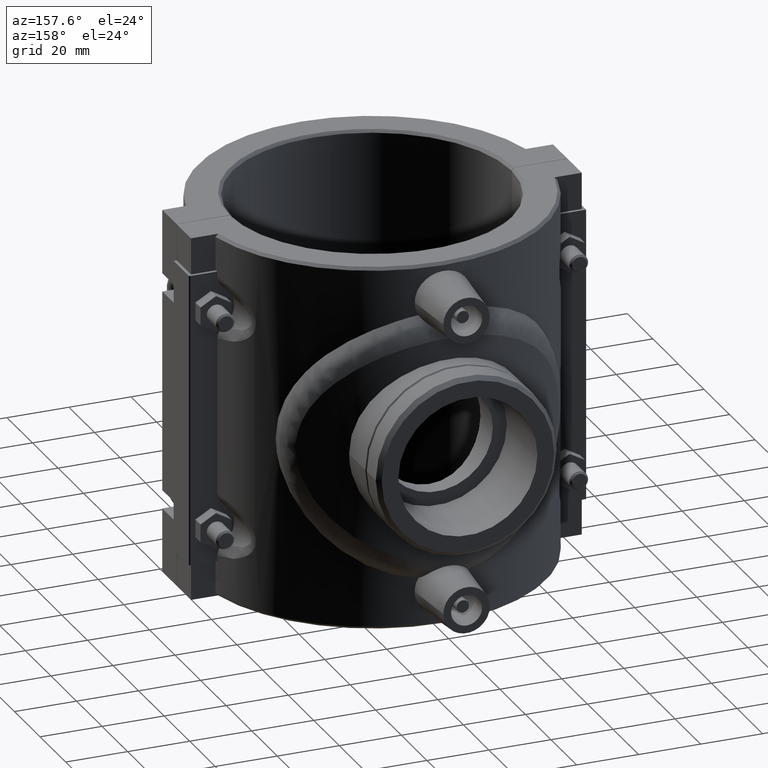
[diagram: clean part render]
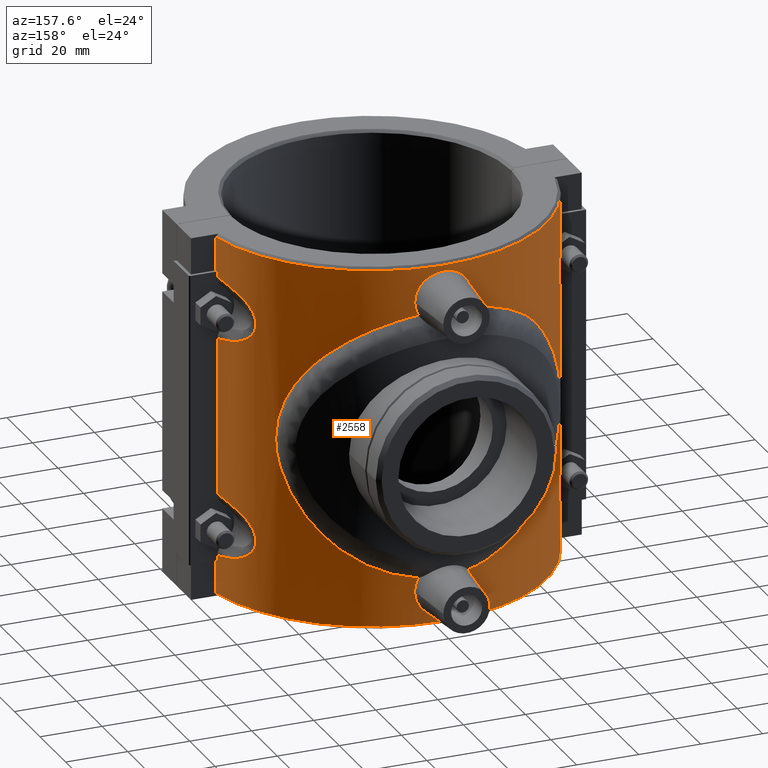
[diagram: same view with one face highlighted and labeled with its STEP entity id]
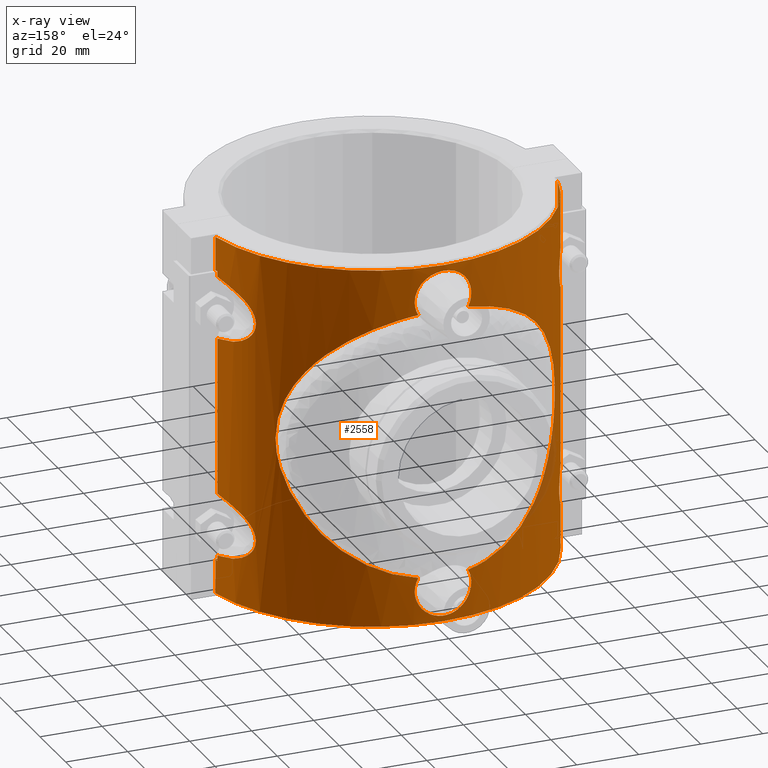
[diagram: x-ray of the same camera — body ghosted, the highlighted face saturated]
A machine part, auxiliary view. The second image highlights one B-rep face of the part: STEP entity #2558.
The next image is the same camera in x-ray: the body ghosted, the highlighted face saturated — about 1% of this face is hidden behind the body in this view.
In plain terms, the highlighted cylindrical surface (partial cylindrical patch) has radius 56.25 mm, axis along (0, 0, 1).
Its self-contained STEP definition (entity closure, byte-faithful):
#73=CYLINDRICAL_SURFACE('',#2736,56.25);
#118=FACE_BOUND('',#433,.T.);
#156=B_SPLINE_CURVE_WITH_KNOTS('',3,(#3756,#3757,#3758,#3759,#3760,#3761,
#3762,#3763,#3764,#3765,#3766,#3767,#3768,#3769),.UNSPECIFIED.,.F.,.F.,
(4,1,1,1,1,1,1,1,1,1,1,4),(-4.4432836975167,-3.87456979215665,-3.30585588679661,
-3.02149893411658,-2.73714198143656,-2.35799937786319,-2.16842807607651,
-1.97885677428983,-1.78928547250314,-1.59971417071646,-1.03100026535641,
-0.462286359996365),.UNSPECIFIED.);
#158=B_SPLINE_CURVE_WITH_KNOTS('',3,(#3875,#3876,#3877,#3878,#3879,#3880,
#3881,#3882,#3883,#3884,#3885,#3886,#3887,#3888),.UNSPECIFIED.,.F.,.F.,
(4,1,1,1,1,1,1,1,1,1,1,4),(-4.4432836995391,-3.87456979369676,-3.30585588785442,
-3.02149893493326,-2.73714198201209,-2.54757068006464,-2.16842807616975,
-1.97885677422231,-1.78928547227486,-1.59971417032741,-1.03100026448508,
-0.462286358642742),.UNSPECIFIED.);
#164=B_SPLINE_CURVE_WITH_KNOTS('',3,(#4121,#4122,#4123,#4124,#4125,#4126,
#4127,#4128,#4129,#4130,#4131,#4132,#4133,#4134),.UNSPECIFIED.,.F.,.F.,
(4,1,1,1,1,1,1,1,1,1,1,4),(-4.44301013192004,-3.87429622653955,-3.30558232115907,
-3.02122536846883,-2.73686841577859,-2.3577258121916,-2.16815451039811,
-1.97858320860462,-1.78901190681112,-1.59944060501763,-1.03072669963715,
-0.462012794256667),.UNSPECIFIED.);
#166=B_SPLINE_CURVE_WITH_KNOTS('',3,(#4211,#4212,#4213,#4214,#4215,#4216,
#4217,#4218,#4219,#4220,#4221,#4222,#4223,#4224,#4225,#4226,#4227,#4228,
#4229,#4230,#4231,#4232,#4233),.UNSPECIFIED.,.F.,.F.,(4,2,2,2,2,2,2,2,3,
2,4),(2.74313259182671,3.08631392385431,3.4294952558819,3.77209707181099,
4.11469888774007,4.45730070366916,4.79990251959824,5.14308385162584,5.48626518365343,
5.82944651568102,5.91699231995167),.UNSPECIFIED.);
#167=B_SPLINE_CURVE_WITH_KNOTS('',3,(#4234,#4235,#4236,#4237,#4238,#4239),
 .UNSPECIFIED.,.F.,.F.,(4,2,4),(2.31240545552862,2.39995125979912,2.74313259182671),
 .UNSPECIFIED.);
#168=B_SPLINE_CURVE_WITH_KNOTS('',3,(#4412,#4413,#4414,#4415,#4416,#4417,
#4418,#4419),.UNSPECIFIED.,.F.,.F.,(4,2,2,4),(0.,1.66212315507135,3.23329201684918,
3.84297080461332),.UNSPECIFIED.);
#170=B_SPLINE_CURVE_WITH_KNOTS('',3,(#4441,#4442,#4443,#4444,#4445,#4446,
#4447,#4448,#4449,#4450),.UNSPECIFIED.,.F.,.F.,(4,2,2,2,4),(5.36290793609133,
5.46058713858226,6.52389862414482,7.74509950607709,9.15954618815557),
 .UNSPECIFIED.);
#172=B_SPLINE_CURVE_WITH_KNOTS('',3,(#4485,#4486,#4487,#4488,#4489,#4490,
#4491,#4492),.UNSPECIFIED.,.F.,.F.,(4,2,2,4),(0.,1.66213023443418,3.23321670017497,
3.84296999681178),.UNSPECIFIED.);
#176=B_SPLINE_CURVE_WITH_KNOTS('',3,(#4540,#4541,#4542,#4543,#4544,#4545,
#4546,#4547,#4548,#4549),.UNSPECIFIED.,.F.,.F.,(4,2,2,2,4),(5.3629090338726,
5.46057653561845,6.52397221121869,7.74515040327368,9.15954774249414),
 .UNSPECIFIED.);
#177=B_SPLINE_CURVE_WITH_KNOTS('',3,(#4567,#4568,#4569,#4570,#4571,#4572),
 .UNSPECIFIED.,.F.,.F.,(4,2,4),(0.,0.343181332027593,0.43072713629824),
 .UNSPECIFIED.);
#178=B_SPLINE_CURVE_WITH_KNOTS('',3,(#4573,#4574,#4575,#4576,#4577,#4578,
#4579,#4580,#4581,#4582,#4583,#4584,#4585,#4586,#4587,#4588,#4589,#4590,
#4591,#4592,#4593,#4594),.UNSPECIFIED.,.F.,.F.,(4,2,2,2,2,2,2,2,2,2,4),
(2.31240545552862,2.39995125979912,2.74313259182671,3.08631392385431,3.4294952558819,
3.77209707181099,4.11469888774007,4.45730070366916,4.79990251959824,5.14308385162584,
5.48626518365343),.UNSPECIFIED.);
#179=B_SPLINE_CURVE_WITH_KNOTS('',3,(#4597,#4598,#4599,#4600,#4601,#4602,
#4603,#4604,#4605,#4606,#4607,#4608,#4609,#4610),.UNSPECIFIED.,.F.,.F.,
(4,1,1,1,1,1,1,1,1,1,1,4),(-4.44328367939686,-3.87456977306521,-3.30585586673356,
-3.02149891356773,-2.73714196040191,-2.35799935618081,-2.16842805407026,
-1.9788567519597,-1.78928544984915,-1.5997141477386,-1.03100024140695,-0.462286335075303),
 .UNSPECIFIED.);
#180=B_SPLINE_CURVE_WITH_KNOTS('',3,(#4616,#4617,#4618,#4619,#4620,#4621,
#4622,#4623,#4624,#4625,#4626,#4627,#4628,#4629),.UNSPECIFIED.,.F.,.F.,
(4,2,2,2,2,2,4),(12.0090314241229,12.6900104453561,13.6128407018104,14.5356709582647,
15.458501214719,16.3813314711733,17.0623104924065),.UNSPECIFIED.);
#181=B_SPLINE_CURVE_WITH_KNOTS('',3,(#4631,#4632,#4633,#4634,#4635,#4636,
#4637,#4638),.UNSPECIFIED.,.F.,.F.,(4,2,2,4),(26.5447023823875,27.2256814036207,
28.148511660075,29.0713419165293),.UNSPECIFIED.);
#182=B_SPLINE_CURVE_WITH_KNOTS('',3,(#4639,#4640,#4641,#4642,#4643,#4644,
#4645,#4646),.UNSPECIFIED.,.F.,.F.,(4,2,2,4),(0.,0.922830256454303,1.84566051290861,
2.52663953414158),.UNSPECIFIED.);
#259=FACE_OUTER_BOUND('',#432,.T.);
#432=EDGE_LOOP('',(#1899,#1900,#1901,#1902,#1903,#1904,#1905,#1906,#1907,
#1908,#1909,#1910,#1911,#1912,#1913,#1914,#1915,#1916,#1917,#1918));
#433=EDGE_LOOP('',(#1919,#1920,#1921,#1922,#1923,#1924,#1925,#1926,#1927,
#1928,#1929));
#589=LINE('',#3600,#788);
#591=LINE('',#3603,#790);
#592=LINE('',#3625,#791);
#613=LINE('',#3789,#812);
#631=LINE('',#3930,#830);
#632=LINE('',#3952,#831);
#633=LINE('',#3974,#832);
#659=LINE('',#4030,#858);
#675=LINE('',#4612,#874);
#676=LINE('',#4615,#875);
#788=VECTOR('',#2928,1.70778280095335);
#790=VECTOR('',#2930,1.70778280095326);
#791=VECTOR('',#2933,50.6155656019066);
#812=VECTOR('',#2966,10.9);
#830=VECTOR('',#3006,1.70778280095321);
#831=VECTOR('',#3009,50.6155656019099);
#832=VECTOR('',#3012,1.70778280095672);
#858=VECTOR('',#3052,10.9);
#874=VECTOR('',#3132,10.9);
#875=VECTOR('',#3135,10.9);
#977=CIRCLE('',#2675,56.25);
#978=CIRCLE('',#2677,56.25);
#985=CIRCLE('',#2700,56.25);
#986=CIRCLE('',#2703,56.25);
#998=CIRCLE('',#2737,56.25);
#999=CIRCLE('',#2738,56.25);
#1067=VERTEX_POINT('',#3573);
#1068=VERTEX_POINT('',#3574);
#1073=VERTEX_POINT('',#3586);
#1074=VERTEX_POINT('',#3587);
#1079=VERTEX_POINT('',#3599);
#1080=VERTEX_POINT('',#3602);
#1083=VERTEX_POINT('',#3615);
#1084=VERTEX_POINT('',#3624);
#1104=VERTEX_POINT('',#3785);
#1117=VERTEX_POINT('',#3927);
#1118=VERTEX_POINT('',#3929);
#1121=VERTEX_POINT('',#3942);
#1122=VERTEX_POINT('',#3951);
#1125=VERTEX_POINT('',#3964);
#1126=VERTEX_POINT('',#3973);
#1142=VERTEX_POINT('',#4007);
#1144=VERTEX_POINT('',#4015);
#1149=VERTEX_POINT('',#4029);
#1163=VERTEX_POINT('',#4176);
#1164=VERTEX_POINT('',#4177);
#1165=VERTEX_POINT('',#4210);
#1167=VERTEX_POINT('',#4411);
#1168=VERTEX_POINT('',#4420);
#1169=VERTEX_POINT('',#4440);
#1170=VERTEX_POINT('',#4451);
#1171=VERTEX_POINT('',#4484);
#1174=VERTEX_POINT('',#4533);
#1180=VERTEX_POINT('',#4566);
#1181=VERTEX_POINT('',#4611);
#1182=VERTEX_POINT('',#4613);
#1183=VERTEX_POINT('',#4630);
#1319=EDGE_CURVE('',#1067,#1068,#977,.T.);
#1325=EDGE_CURVE('',#1073,#1074,#978,.T.);
#1331=EDGE_CURVE('',#1068,#1079,#589,.T.);
#1333=EDGE_CURVE('',#1080,#1073,#591,.T.);
#1337=EDGE_CURVE('',#1084,#1083,#592,.T.);
#1355=EDGE_CURVE('',#1084,#1079,#156,.T.);
#1364=EDGE_CURVE('',#1104,#1074,#613,.T.);
#1366=EDGE_CURVE('',#1080,#1083,#158,.T.);
#1386=EDGE_CURVE('',#1118,#1117,#631,.T.);
#1390=EDGE_CURVE('',#1122,#1121,#632,.T.);
#1394=EDGE_CURVE('',#1126,#1125,#633,.T.);
#1412=EDGE_CURVE('',#1117,#1142,#985,.T.);
#1415=EDGE_CURVE('',#1144,#1126,#986,.T.);
#1422=EDGE_CURVE('',#1149,#1144,#659,.T.);
#1426=EDGE_CURVE('',#1122,#1125,#164,.T.);
#1446=EDGE_CURVE('',#1165,#1163,#166,.T.);
#1447=EDGE_CURVE('',#1164,#1165,#167,.T.);
#1449=EDGE_CURVE('',#1167,#1164,#168,.T.);
#1451=EDGE_CURVE('',#1169,#1168,#170,.T.);
#1453=EDGE_CURVE('',#1171,#1170,#172,.T.);
#1458=EDGE_CURVE('',#1163,#1174,#176,.T.);
#1464=EDGE_CURVE('',#1180,#1169,#177,.T.);
#1465=EDGE_CURVE('',#1170,#1180,#178,.T.);
#1466=EDGE_CURVE('',#1149,#1104,#998,.T.);
#1467=EDGE_CURVE('',#1118,#1121,#179,.T.);
#1468=EDGE_CURVE('',#1142,#1181,#675,.T.);
#1469=EDGE_CURVE('',#1182,#1181,#999,.T.);
#1470=EDGE_CURVE('',#1067,#1182,#676,.T.);
#1471=EDGE_CURVE('',#1174,#1171,#180,.T.);
#1472=EDGE_CURVE('',#1168,#1183,#181,.T.);
#1473=EDGE_CURVE('',#1183,#1167,#182,.T.);
#1899=ORIENTED_EDGE('',*,*,#1331,.T.);
#1900=ORIENTED_EDGE('',*,*,#1355,.F.);
#1901=ORIENTED_EDGE('',*,*,#1337,.T.);
#1902=ORIENTED_EDGE('',*,*,#1366,.F.);
#1903=ORIENTED_EDGE('',*,*,#1333,.T.);
#1904=ORIENTED_EDGE('',*,*,#1325,.T.);
#1905=ORIENTED_EDGE('',*,*,#1364,.F.);
#1906=ORIENTED_EDGE('',*,*,#1466,.F.);
#1907=ORIENTED_EDGE('',*,*,#1422,.T.);
#1908=ORIENTED_EDGE('',*,*,#1415,.T.);
#1909=ORIENTED_EDGE('',*,*,#1394,.T.);
#1910=ORIENTED_EDGE('',*,*,#1426,.F.);
#1911=ORIENTED_EDGE('',*,*,#1390,.T.);
#1912=ORIENTED_EDGE('',*,*,#1467,.F.);
#1913=ORIENTED_EDGE('',*,*,#1386,.T.);
#1914=ORIENTED_EDGE('',*,*,#1412,.T.);
#1915=ORIENTED_EDGE('',*,*,#1468,.T.);
#1916=ORIENTED_EDGE('',*,*,#1469,.F.);
#1917=ORIENTED_EDGE('',*,*,#1470,.F.);
#1918=ORIENTED_EDGE('',*,*,#1319,.T.);
#1919=ORIENTED_EDGE('',*,*,#1446,.T.);
#1920=ORIENTED_EDGE('',*,*,#1458,.T.);
#1921=ORIENTED_EDGE('',*,*,#1471,.T.);
#1922=ORIENTED_EDGE('',*,*,#1453,.T.);
#1923=ORIENTED_EDGE('',*,*,#1465,.T.);
#1924=ORIENTED_EDGE('',*,*,#1464,.T.);
#1925=ORIENTED_EDGE('',*,*,#1451,.T.);
#1926=ORIENTED_EDGE('',*,*,#1472,.T.);
#1927=ORIENTED_EDGE('',*,*,#1473,.T.);
#1928=ORIENTED_EDGE('',*,*,#1449,.T.);
#1929=ORIENTED_EDGE('',*,*,#1447,.T.);
#2558=ADVANCED_FACE('',(#259,#118),#73,.T.);
#2675=AXIS2_PLACEMENT_3D('',#3575,#2910,#2911);
#2677=AXIS2_PLACEMENT_3D('',#3588,#2919,#2920);
#2700=AXIS2_PLACEMENT_3D('',#4009,#3032,#3033);
#2703=AXIS2_PLACEMENT_3D('',#4016,#3040,#3041);
#2736=AXIS2_PLACEMENT_3D('',#4595,#3128,#3129);
#2737=AXIS2_PLACEMENT_3D('',#4596,#3130,#3131);
#2738=AXIS2_PLACEMENT_3D('',#4614,#3133,#3134);
#2910=DIRECTION('center_axis',(0.,0.,-1.));
#2911=DIRECTION('ref_axis',(1.,0.,0.));
#2919=DIRECTION('center_axis',(0.,0.,1.));
#2920=DIRECTION('ref_axis',(1.,0.,0.));
#2928=DIRECTION('',(0.,0.,1.));
#2930=DIRECTION('',(0.,0.,1.));
#2933=DIRECTION('',(0.,0.,1.));
#2966=DIRECTION('',(0.,0.,-1.));
#3006=DIRECTION('',(0.,0.,-1.));
#3009=DIRECTION('',(0.,0.,-1.));
#3012=DIRECTION('',(0.,0.,-1.));
#3032=DIRECTION('center_axis',(0.,0.,-1.));
#3033=DIRECTION('ref_axis',(1.,0.,0.));
#3040=DIRECTION('center_axis',(0.,0.,1.));
#3041=DIRECTION('ref_axis',(1.,0.,0.));
#3052=DIRECTION('',(0.,0.,-1.));
#3128=DIRECTION('center_axis',(0.,0.,1.));
#3129=DIRECTION('ref_axis',(1.,0.,0.));
#3130=DIRECTION('center_axis',(0.,0.,1.));
#3131=DIRECTION('ref_axis',(1.,0.,0.));
#3132=DIRECTION('',(0.,0.,-1.));
#3133=DIRECTION('center_axis',(0.,0.,-1.));
#3134=DIRECTION('ref_axis',(1.,0.,0.));
#3135=DIRECTION('',(0.,0.,-1.));
#3573=CARTESIAN_POINT('',(-55.1135192126215,11.25,-47.2));
#3574=CARTESIAN_POINT('',(-54.8999089252432,12.25,-47.2));
#3575=CARTESIAN_POINT('Origin',(0.,0.,-47.2));
#3586=CARTESIAN_POINT('',(-54.8999089252432,12.25,47.2));
#3587=CARTESIAN_POINT('',(-55.1135192126215,11.25,47.2));
#3588=CARTESIAN_POINT('Origin',(0.,0.,47.2));
#3599=CARTESIAN_POINT('',(-54.8999089179789,12.2500000162779,-45.4922171990467));
#3600=CARTESIAN_POINT('',(-54.8999089252432,12.25,0.));
#3602=CARTESIAN_POINT('',(-54.899908917979,12.2500000162777,45.4922171990468));
#3603=CARTESIAN_POINT('',(-54.8999089252432,12.25,0.));
#3615=CARTESIAN_POINT('',(-54.8999089179791,12.2500000162777,25.3077828009532));
#3624=CARTESIAN_POINT('',(-54.8999089179789,12.2500000162779,-25.3077828009533));
#3625=CARTESIAN_POINT('',(-54.8999089252432,12.25,0.));
#3756=CARTESIAN_POINT('Ctrl Pts',(-54.8999089213823,12.2500000173033,-25.3077827989392));
#3757=CARTESIAN_POINT('Ctrl Pts',(-54.4553876907969,14.2421775714585,-25.5708567595228));
#3758=CARTESIAN_POINT('Ctrl Pts',(-53.3575473861603,18.1451389868657,-26.2853285542936));
#3759=CARTESIAN_POINT('Ctrl Pts',(-51.540562442414,22.6521070077503,-28.0032232152552));
#3760=CARTESIAN_POINT('Ctrl Pts',(-50.082587649778,25.6429322773433,-30.2803982309347));
#3761=CARTESIAN_POINT('Ctrl Pts',(-49.0654279078561,27.522040561946,-32.8160505434599));
#3762=CARTESIAN_POINT('Ctrl Pts',(-48.7833328887555,28.0023686158862,-35.7473162991442));
#3763=CARTESIAN_POINT('Ctrl Pts',(-49.2234729753004,27.2299593697235,-38.1840608040132));
#3764=CARTESIAN_POINT('Ctrl Pts',(-49.768681652106,26.2242062100113,-39.7699485444456));
#3765=CARTESIAN_POINT('Ctrl Pts',(-50.4458562055039,24.9026281721025,-41.0991633915486));
#3766=CARTESIAN_POINT('Ctrl Pts',(-51.6615148908291,22.3519108570892,-42.9111048289742));
#3767=CARTESIAN_POINT('Ctrl Pts',(-53.3603808371207,18.1413726435497,-44.5139656948494));
#3768=CARTESIAN_POINT('Ctrl Pts',(-54.4553876908025,14.2421775714593,-45.2291432404736));
#3769=CARTESIAN_POINT('Ctrl Pts',(-54.8999089213823,12.2500000173033,-45.4922172010608));
#3785=CARTESIAN_POINT('',(-55.1135192126215,11.25,58.1));
#3789=CARTESIAN_POINT('',(-55.1135192126215,11.25,0.));
#3875=CARTESIAN_POINT('Ctrl Pts',(-54.8999089213823,12.250000017303,45.4922172010609));
#3876=CARTESIAN_POINT('Ctrl Pts',(-54.4553876889208,14.2421775798515,45.2291432393714));
#3877=CARTESIAN_POINT('Ctrl Pts',(-53.3559302999594,18.1472868464904,44.5152441326441));
#3878=CARTESIAN_POINT('Ctrl Pts',(-51.5440047875538,22.6475315805573,42.7960302724141));
#3879=CARTESIAN_POINT('Ctrl Pts',(-50.0793451301757,25.6472359907642,40.52121407608));
#3880=CARTESIAN_POINT('Ctrl Pts',(-49.2773436107506,27.134941181442,38.4894894718836));
#3881=CARTESIAN_POINT('Ctrl Pts',(-48.7890274793622,27.9948014650778,35.750039158123));
#3882=CARTESIAN_POINT('Ctrl Pts',(-49.0279471771215,27.5835416322441,33.1407788443354));
#3883=CARTESIAN_POINT('Ctrl Pts',(-49.7717062013733,26.2201812007771,31.0302967342029));
#3884=CARTESIAN_POINT('Ctrl Pts',(-50.4440934835873,24.9049662598335,29.70013610923));
#3885=CARTESIAN_POINT('Ctrl Pts',(-51.6635761246264,22.3491521535488,27.8893415107128));
#3886=CARTESIAN_POINT('Ctrl Pts',(-53.3556115894081,18.1477146642165,26.2842284628556));
#3887=CARTESIAN_POINT('Ctrl Pts',(-54.4553876889202,14.2421775798516,25.570856760627));
#3888=CARTESIAN_POINT('Ctrl Pts',(-54.8999089213824,12.250000017303,25.3077827989391));
#3927=CARTESIAN_POINT('',(54.8999089252432,12.25,-47.2));
#3929=CARTESIAN_POINT('',(54.8999089179792,12.2500000162774,-45.4922171990468));
#3930=CARTESIAN_POINT('',(54.8999089252432,12.25,0.));
#3942=CARTESIAN_POINT('',(54.8999089179792,12.2500000162774,-25.3077828009532));
#3951=CARTESIAN_POINT('',(54.8999089179732,12.2500000162907,25.3077828009567));
#3952=CARTESIAN_POINT('',(54.8999089252432,12.25,0.));
#3964=CARTESIAN_POINT('',(54.8999089179732,12.2500000162907,45.4922171990433));
#3973=CARTESIAN_POINT('',(54.8999089252432,12.25,47.2));
#3974=CARTESIAN_POINT('',(54.8999089252432,12.25,0.));
#4007=CARTESIAN_POINT('',(55.1135192126215,11.25,-47.2));
#4009=CARTESIAN_POINT('Origin',(0.,0.,-47.2));
#4015=CARTESIAN_POINT('',(55.1135192126215,11.25,47.2));
#4016=CARTESIAN_POINT('Origin',(0.,0.,47.2));
#4029=CARTESIAN_POINT('',(55.1135192126215,11.25,58.1));
#4030=CARTESIAN_POINT('',(55.1135192126215,11.25,0.));
#4121=CARTESIAN_POINT('Ctrl Pts',(54.8999089213792,12.2500000173169,25.307782798941));
#4122=CARTESIAN_POINT('Ctrl Pts',(54.455387566367,14.2421781291042,25.5708568331623));
#4123=CARTESIAN_POINT('Ctrl Pts',(53.3575476643295,18.1451380407099,26.285328348567));
#4124=CARTESIAN_POINT('Ctrl Pts',(51.5405624033333,22.6521071865463,28.0032232302035));
#4125=CARTESIAN_POINT('Ctrl Pts',(50.0825876631065,25.6429322288687,30.2803982218516));
#4126=CARTESIAN_POINT('Ctrl Pts',(49.0654279029529,27.5220405864759,32.8160505461926));
#4127=CARTESIAN_POINT('Ctrl Pts',(48.7833328909295,28.0023686088577,35.7473162966597));
#4128=CARTESIAN_POINT('Ctrl Pts',(49.223472977541,27.2299593634131,38.1840608059436));
#4129=CARTESIAN_POINT('Ctrl Pts',(49.7686816497247,26.2242062196946,39.769948541637));
#4130=CARTESIAN_POINT('Ctrl Pts',(50.445856213988,24.9026281423192,41.0991633982296));
#4131=CARTESIAN_POINT('Ctrl Pts',(51.6615148705497,22.3519109454095,42.9111048181588));
#4132=CARTESIAN_POINT('Ctrl Pts',(53.3603811086372,18.1413717506214,44.5139659098426));
#4133=CARTESIAN_POINT('Ctrl Pts',(54.4553875663726,14.242178129105,45.2291431668341));
#4134=CARTESIAN_POINT('Ctrl Pts',(54.8999089213792,12.2500000173169,45.492217201059));
#4176=CARTESIAN_POINT('',(-8.01635095974523,55.6758530899185,42.8865848227694));
#4177=CARTESIAN_POINT('',(8.01635095974782,55.6758530899177,42.8865848227697));
#4210=CARTESIAN_POINT('',(9.11800873845826,55.5060754930971,47.2));
#4211=CARTESIAN_POINT('Ctrl Pts',(9.11800873845826,55.5060754930971,47.2));
#4212=CARTESIAN_POINT('Ctrl Pts',(9.11800873845826,55.5060754930971,48.3439377734253));
#4213=CARTESIAN_POINT('Ctrl Pts',(8.88624265902109,55.5456725872219,49.5617000988733));
#4214=CARTESIAN_POINT('Ctrl Pts',(7.94918140537007,55.6874991583152,51.7964570610143));
#4215=CARTESIAN_POINT('Ctrl Pts',(7.24404978259336,55.7875647584554,52.8136570735628));
#4216=CARTESIAN_POINT('Ctrl Pts',(5.62378310962451,55.9740962821604,54.4153689943357));
#4217=CARTESIAN_POINT('Ctrl Pts',(4.60052366103052,56.072790359678,55.1080902737202));
#4218=CARTESIAN_POINT('Ctrl Pts',(2.35970858857015,56.211692838276,56.0269035949766));
#4219=CARTESIAN_POINT('Ctrl Pts',(1.14200605309695,56.25,56.2529237775852));
#4220=CARTESIAN_POINT('Ctrl Pts',(-1.14200605309695,56.25,56.2529237775852));
#4221=CARTESIAN_POINT('Ctrl Pts',(-2.35970858857016,56.211692838276,56.0269035949766));
#4222=CARTESIAN_POINT('Ctrl Pts',(-4.60052366103052,56.072790359678,55.1080902737202));
#4223=CARTESIAN_POINT('Ctrl Pts',(-5.62378310962451,55.9740962821604,54.4153689943357));
#4224=CARTESIAN_POINT('Ctrl Pts',(-7.24404978259336,55.7875647584554,52.8136570735628));
#4225=CARTESIAN_POINT('Ctrl Pts',(-7.94918140537006,55.6874991583152,51.7964570610143));
#4226=CARTESIAN_POINT('Ctrl Pts',(-8.88624265902108,55.5456725872219,49.5617000988733));
#4227=CARTESIAN_POINT('Ctrl Pts',(-9.11800873845826,55.5060754930971,48.3439377734253));
#4228=CARTESIAN_POINT('Ctrl Pts',(-9.11800873845826,55.5060754930971,47.2));
#4229=CARTESIAN_POINT('Ctrl Pts',(-9.11800873845826,55.5060754930971,46.0560622265747));
#4230=CARTESIAN_POINT('Ctrl Pts',(-8.88624265902109,55.5456725872219,44.8382999011268));
#4231=CARTESIAN_POINT('Ctrl Pts',(-8.298189532797,55.6346759028409,43.4358773670418));
#4232=CARTESIAN_POINT('Ctrl Pts',(-8.16395195930278,55.6546011225252,43.1569728595242));
#4233=CARTESIAN_POINT('Ctrl Pts',(-8.01635095974515,55.6758530899185,42.8865848227695));
#4234=CARTESIAN_POINT('Ctrl Pts',(8.01635095974588,55.6758530899184,42.8865848227708));
#4235=CARTESIAN_POINT('Ctrl Pts',(8.16395195930323,55.6546011225251,43.1569728595251));
#4236=CARTESIAN_POINT('Ctrl Pts',(8.2981895327972,55.6346759028408,43.4358773670423));
#4237=CARTESIAN_POINT('Ctrl Pts',(8.88624265902109,55.5456725872219,44.8382999011268));
#4238=CARTESIAN_POINT('Ctrl Pts',(9.11800873845826,55.5060754930971,46.0560622265747));
#4239=CARTESIAN_POINT('Ctrl Pts',(9.11800873845826,55.5060754930971,47.2));
#4411=CARTESIAN_POINT('',(38.4553312298839,41.0517965502112,23.3706546763225));
#4412=CARTESIAN_POINT('Ctrl Pts',(38.4553312298828,41.051796550212,23.3706546763243));
#4413=CARTESIAN_POINT('Ctrl Pts',(35.8678854174778,43.475590247857,27.6281770749677));
#4414=CARTESIAN_POINT('Ctrl Pts',(32.4398956584031,46.2204584678389,31.4562893369683));
#4415=CARTESIAN_POINT('Ctrl Pts',(24.0835896457297,51.0493689109162,37.6436254011778));
#4416=CARTESIAN_POINT('Ctrl Pts',(19.38971174939,53.0736063293211,39.9681333662694));
#4417=CARTESIAN_POINT('Ctrl Pts',(12.1939130352997,54.951737397698,42.0859408054725));
#4418=CARTESIAN_POINT('Ctrl Pts',(10.1262583439932,55.3720632574146,42.5516410437728));
#4419=CARTESIAN_POINT('Ctrl Pts',(8.0163509597497,55.6758530899179,42.8865848227687));
#4420=CARTESIAN_POINT('',(38.4553312298829,41.051796550212,-23.3706546763242));
#4440=CARTESIAN_POINT('',(8.01635095974524,55.6758530899185,-42.8865848227694));
#4441=CARTESIAN_POINT('Ctrl Pts',(8.01635095974532,55.6758530899185,-42.8865848227694));
#4442=CARTESIAN_POINT('Ctrl Pts',(8.35470052993764,55.6271366580866,-42.8328724728776));
#4443=CARTESIAN_POINT('Ctrl Pts',(8.69218487820424,55.5753964222778,-42.7757580671239));
#4444=CARTESIAN_POINT('Ctrl Pts',(12.6924070202955,54.9248824368825,-42.0565825933134));
#4445=CARTESIAN_POINT('Ctrl Pts',(16.1958405758888,53.9813674650219,-41.0065314986443));
#4446=CARTESIAN_POINT('Ctrl Pts',(23.2448533286679,51.3796848192198,-37.9766873824348));
#4447=CARTESIAN_POINT('Ctrl Pts',(26.6671632264126,49.6545214383395,-35.9046889124768));
#4448=CARTESIAN_POINT('Ctrl Pts',(33.1862836644711,45.6037148167829,-30.5767935536865));
#4449=CARTESIAN_POINT('Ctrl Pts',(36.1260190157784,43.2337832172665,-27.2034301792691));
#4450=CARTESIAN_POINT('Ctrl Pts',(38.4553312298828,41.051796550212,-23.3706546763243));
#4451=CARTESIAN_POINT('',(-8.01635095974783,55.6758530899177,-42.8865848227697));
#4484=CARTESIAN_POINT('',(-38.4553312298828,41.0517965502121,-23.3706546763244));
#4485=CARTESIAN_POINT('Ctrl Pts',(-38.4553312298828,41.051796550212,-23.3706546763244));
#4486=CARTESIAN_POINT('Ctrl Pts',(-35.867874396954,43.475600571349,-27.6281952087298));
#4487=CARTESIAN_POINT('Ctrl Pts',(-32.4398664521131,46.2204817734825,-31.4563219299302));
#4488=CARTESIAN_POINT('Ctrl Pts',(-24.0837412199959,51.0492752437482,-37.6435028027884));
#4489=CARTESIAN_POINT('Ctrl Pts',(-19.3901341339146,53.0734215454525,-39.9679195788223));
#4490=CARTESIAN_POINT('Ctrl Pts',(-12.194414740393,54.9516353730576,-42.0858278650265));
#4491=CARTESIAN_POINT('Ctrl Pts',(-10.1265141511783,55.3720264256454,-42.5516004348693));
#4492=CARTESIAN_POINT('Ctrl Pts',(-8.01635095974973,55.6758530899179,-42.8865848227687));
#4533=CARTESIAN_POINT('',(-38.455331229883,41.0517965502119,23.370654676324));
#4540=CARTESIAN_POINT('Ctrl Pts',(-8.01635095974531,55.6758530899185,42.8865848227694));
#4541=CARTESIAN_POINT('Ctrl Pts',(-8.35465992993815,55.6271425037778,42.8328789180502));
#4542=CARTESIAN_POINT('Ctrl Pts',(-8.69210391099403,55.5754088357059,42.7757717698533));
#4543=CARTESIAN_POINT('Ctrl Pts',(-12.6925782299882,54.9248627963765,42.0565611076124));
#4544=CARTESIAN_POINT('Ctrl Pts',(-16.1962780203929,53.9812528950789,41.0064051297338));
#4545=CARTESIAN_POINT('Ctrl Pts',(-23.2454085144383,51.3794260578593,37.9763779320789));
#4546=CARTESIAN_POINT('Ctrl Pts',(-26.6676171065011,49.6542713335722,35.9043763858823));
#4547=CARTESIAN_POINT('Ctrl Pts',(-33.1864872308644,45.6035513466291,30.5765595170627));
#4548=CARTESIAN_POINT('Ctrl Pts',(-36.1260996487783,43.2337076841844,27.2032975013975));
#4549=CARTESIAN_POINT('Ctrl Pts',(-38.4553312298828,41.051796550212,23.3706546763243));
#4566=CARTESIAN_POINT('',(9.11800873845826,55.5060754930971,-47.2));
#4567=CARTESIAN_POINT('Ctrl Pts',(9.11800873845826,55.5060754930971,-47.2));
#4568=CARTESIAN_POINT('Ctrl Pts',(9.11800873845826,55.5060754930971,-46.0560622265747));
#4569=CARTESIAN_POINT('Ctrl Pts',(8.88624265902109,55.5456725872219,-44.8382999011268));
#4570=CARTESIAN_POINT('Ctrl Pts',(8.298189532797,55.6346759028409,-43.4358773670418));
#4571=CARTESIAN_POINT('Ctrl Pts',(8.16395195930278,55.6546011225252,-43.1569728595242));
#4572=CARTESIAN_POINT('Ctrl Pts',(8.01635095974516,55.6758530899185,-42.8865848227695));
#4573=CARTESIAN_POINT('Ctrl Pts',(-8.01635095974589,55.6758530899184,-42.8865848227708));
#4574=CARTESIAN_POINT('Ctrl Pts',(-8.16395195930323,55.6546011225252,-43.1569728595251));
#4575=CARTESIAN_POINT('Ctrl Pts',(-8.2981895327972,55.6346759028409,-43.4358773670423));
#4576=CARTESIAN_POINT('Ctrl Pts',(-8.88624265902109,55.5456725872219,-44.8382999011268));
#4577=CARTESIAN_POINT('Ctrl Pts',(-9.11800873845826,55.5060754930971,-46.0560622265747));
#4578=CARTESIAN_POINT('Ctrl Pts',(-9.11800873845826,55.5060754930971,-48.3439377734253));
#4579=CARTESIAN_POINT('Ctrl Pts',(-8.88624265902108,55.5456725872219,-49.5617000988733));
#4580=CARTESIAN_POINT('Ctrl Pts',(-7.94918140537006,55.6874991583152,-51.7964570610143));
#4581=CARTESIAN_POINT('Ctrl Pts',(-7.24404978259336,55.7875647584554,-52.8136570735628));
#4582=CARTESIAN_POINT('Ctrl Pts',(-5.6237831096245,55.9740962821604,-54.4153689943357));
#4583=CARTESIAN_POINT('Ctrl Pts',(-4.60052366103052,56.072790359678,-55.1080902737202));
#4584=CARTESIAN_POINT('Ctrl Pts',(-2.35970858857015,56.211692838276,-56.0269035949766));
#4585=CARTESIAN_POINT('Ctrl Pts',(-1.14200605309695,56.25,-56.2529237775852));
#4586=CARTESIAN_POINT('Ctrl Pts',(1.14200605309695,56.25,-56.2529237775852));
#4587=CARTESIAN_POINT('Ctrl Pts',(2.35970858857015,56.211692838276,-56.0269035949766));
#4588=CARTESIAN_POINT('Ctrl Pts',(4.60052366103052,56.072790359678,-55.1080902737202));
#4589=CARTESIAN_POINT('Ctrl Pts',(5.6237831096245,55.9740962821604,-54.4153689943357));
#4590=CARTESIAN_POINT('Ctrl Pts',(7.24404978259336,55.7875647584554,-52.8136570735628));
#4591=CARTESIAN_POINT('Ctrl Pts',(7.94918140537006,55.6874991583152,-51.7964570610143));
#4592=CARTESIAN_POINT('Ctrl Pts',(8.88624265902108,55.5456725872219,-49.5617000988733));
#4593=CARTESIAN_POINT('Ctrl Pts',(9.11800873845826,55.5060754930971,-48.3439377734253));
#4594=CARTESIAN_POINT('Ctrl Pts',(9.11800873845826,55.5060754930971,-47.2));
#4595=CARTESIAN_POINT('Origin',(0.,0.,0.));
#4596=CARTESIAN_POINT('Origin',(0.,0.,58.1));
#4597=CARTESIAN_POINT('Ctrl Pts',(54.8999089213824,12.2500000173027,-45.4922172010609));
#4598=CARTESIAN_POINT('Ctrl Pts',(54.4553876870139,14.2421775884127,-45.2291432382383));
#4599=CARTESIAN_POINT('Ctrl Pts',(53.357554119127,18.1451299015504,-44.5146741290753));
#4600=CARTESIAN_POINT('Ctrl Pts',(51.5405877928115,22.6520729192052,-42.7967864685537));
#4601=CARTESIAN_POINT('Ctrl Pts',(50.0826403937179,25.6428613553268,-40.5196223513101));
#4602=CARTESIAN_POINT('Ctrl Pts',(49.0655092770038,27.5219311492863,-37.9839805244393));
#4603=CARTESIAN_POINT('Ctrl Pts',(48.7834974437151,28.0021473593733,-35.0527483126605));
#4604=CARTESIAN_POINT('Ctrl Pts',(49.2237191508031,27.2296283470761,-32.6160328895992));
#4605=CARTESIAN_POINT('Ctrl Pts',(49.7691326935468,26.2235997596985,-31.0302298878456));
#4606=CARTESIAN_POINT('Ctrl Pts',(50.4463001689457,24.9020311488208,-29.7010027728902));
#4607=CARTESIAN_POINT('Ctrl Pts',(51.6628854420496,22.3500690219218,-27.8894523617628));
#4608=CARTESIAN_POINT('Ctrl Pts',(53.3564339655973,18.146621247894,-26.2844579246913));
#4609=CARTESIAN_POINT('Ctrl Pts',(54.4553876870116,14.2421775884126,-25.5708567617585));
#4610=CARTESIAN_POINT('Ctrl Pts',(54.8999089213824,12.2500000173027,-25.3077827989391));
#4611=CARTESIAN_POINT('',(55.1135192126215,11.25,-58.1));
#4612=CARTESIAN_POINT('',(55.1135192126215,11.25,0.));
#4613=CARTESIAN_POINT('',(-55.1135192126215,11.25,-58.1));
#4614=CARTESIAN_POINT('Origin',(0.,0.,-58.1));
#4615=CARTESIAN_POINT('',(-55.1135192126215,11.25,0.));
#4616=CARTESIAN_POINT('Ctrl Pts',(-38.455331229883,41.0517965502119,23.370654676324));
#4617=CARTESIAN_POINT('Ctrl Pts',(-39.5678081142481,40.0096821808316,21.5401254221655));
#4618=CARTESIAN_POINT('Ctrl Pts',(-40.5592595822363,38.9947925514869,19.6134293488302));
#4619=CARTESIAN_POINT('Ctrl Pts',(-42.565844652351,36.8119813429351,14.8947568729464));
#4620=CARTESIAN_POINT('Ctrl Pts',(-43.4656558291279,35.7177656961348,12.0347005844838));
#4621=CARTESIAN_POINT('Ctrl Pts',(-44.6829238851968,34.1827199555927,6.12646387012513));
#4622=CARTESIAN_POINT('Ctrl Pts',(-45.,33.75,3.07610085484768));
#4623=CARTESIAN_POINT('Ctrl Pts',(-45.,33.75,-3.07610085484767));
#4624=CARTESIAN_POINT('Ctrl Pts',(-44.6829238851968,34.1827199555927,-6.12646387012512));
#4625=CARTESIAN_POINT('Ctrl Pts',(-43.4656558291279,35.7177656961348,-12.0347005844838));
#4626=CARTESIAN_POINT('Ctrl Pts',(-42.565844652351,36.8119813429351,-14.8947568729464));
#4627=CARTESIAN_POINT('Ctrl Pts',(-40.5592595822362,38.9947925514869,-19.6134293488303));
#4628=CARTESIAN_POINT('Ctrl Pts',(-39.567808114248,40.0096821808318,-21.5401254221657));
#4629=CARTESIAN_POINT('Ctrl Pts',(-38.4553312298828,41.0517965502121,-23.3706546763244));
#4630=CARTESIAN_POINT('',(45.,33.75,1.11022302462516E-15));
#4631=CARTESIAN_POINT('Ctrl Pts',(38.4553312298829,41.051796550212,-23.3706546763242));
#4632=CARTESIAN_POINT('Ctrl Pts',(39.567808114248,40.0096821808317,-21.5401254221656));
#4633=CARTESIAN_POINT('Ctrl Pts',(40.5592595822363,38.9947925514869,-19.6134293488303));
#4634=CARTESIAN_POINT('Ctrl Pts',(42.565844652351,36.8119813429351,-14.8947568729464));
#4635=CARTESIAN_POINT('Ctrl Pts',(43.4656558291279,35.7177656961348,-12.0347005844838));
#4636=CARTESIAN_POINT('Ctrl Pts',(44.6829238851968,34.1827199555927,-6.12646387012514));
#4637=CARTESIAN_POINT('Ctrl Pts',(45.,33.75,-3.07610085484768));
#4638=CARTESIAN_POINT('Ctrl Pts',(45.,33.75,5.55111512312578E-16));
#4639=CARTESIAN_POINT('Ctrl Pts',(45.,33.75,1.11022302462516E-15));
#4640=CARTESIAN_POINT('Ctrl Pts',(45.,33.75,3.07610085484768));
#4641=CARTESIAN_POINT('Ctrl Pts',(44.6829238851968,34.1827199555927,6.12646387012513));
#4642=CARTESIAN_POINT('Ctrl Pts',(43.4656558291279,35.7177656961348,12.0347005844838));
#4643=CARTESIAN_POINT('Ctrl Pts',(42.565844652351,36.811981342935,14.8947568729464));
#4644=CARTESIAN_POINT('Ctrl Pts',(40.5592595822365,38.9947925514866,19.6134293488297));
#4645=CARTESIAN_POINT('Ctrl Pts',(39.5678081142486,40.0096821808311,21.5401254221644));
#4646=CARTESIAN_POINT('Ctrl Pts',(38.4553312298839,41.051796550211,23.3706546763226));